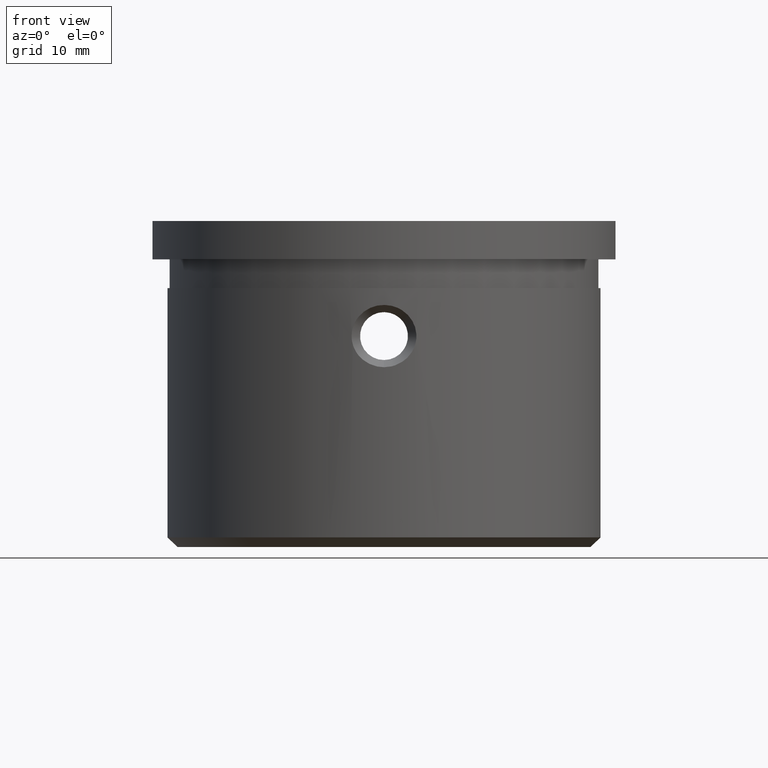
[diagram: clean part render]
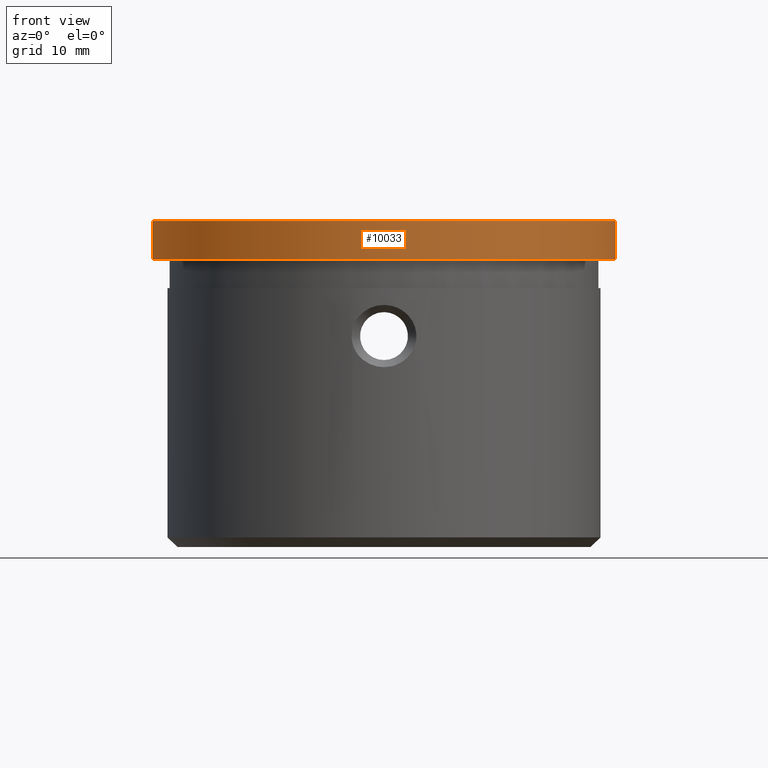
[diagram: same view with one face highlighted and labeled with its STEP entity id]
A machine part, front view. The second image highlights one B-rep face of the part: STEP entity #10033.
In plain terms, the highlighted cylindrical surface (bore or boss wall) has radius 24.15 mm, axis along (-0, -0, -1).
Its self-contained STEP definition (entity closure, byte-faithful):
#343 = CARTESIAN_POINT ( 'NONE',  ( 0.0000000000000000000, 0.0000000000000000000, 4.000000000000000000 ) ) ;
#741 = AXIS2_PLACEMENT_3D ( 'NONE', #3189, #14341, #12376 ) ;
#3000 = EDGE_LOOP ( 'NONE', ( #14450 ) ) ;
#3189 = CARTESIAN_POINT ( 'NONE',  ( 0.0000000000000000000, 0.0000000000000000000, 4.000000000000000000 ) ) ;
#3266 = EDGE_CURVE ( 'NONE', #9287, #9287, #15838, .T. ) ;
#3357 = CYLINDRICAL_SURFACE ( 'NONE', #741, 24.14999999999999900 ) ;
#3604 = CARTESIAN_POINT ( 'NONE',  ( 24.14999999999999900, 0.0000000000000000000, 4.000000000000000000 ) ) ;
#4162 = AXIS2_PLACEMENT_3D ( 'NONE', #15405, #5888, #7769 ) ;
#4877 = EDGE_LOOP ( 'NONE', ( #24155 ) ) ;
#5661 = AXIS2_PLACEMENT_3D ( 'NONE', #343, #9670, #13337 ) ;
#5888 = DIRECTION ( 'NONE',  ( 0.0000000000000000000, 0.0000000000000000000, 1.000000000000000000 ) ) ;
#5965 = CIRCLE ( 'NONE', #5661, 24.14999999999999900 ) ;
#7769 = DIRECTION ( 'NONE',  ( 1.000000000000000000, 0.0000000000000000000, 0.0000000000000000000 ) ) ;
#9287 = VERTEX_POINT ( 'NONE', #21574 ) ;
#9670 = DIRECTION ( 'NONE',  ( 0.0000000000000000000, 0.0000000000000000000, 1.000000000000000000 ) ) ;
#10033 = ADVANCED_FACE ( 'NONE', ( #18948, #23388 ), #3357, .T. ) ;
#11906 = EDGE_CURVE ( 'NONE', #23383, #23383, #5965, .T. ) ;
#12376 = DIRECTION ( 'NONE',  ( -1.000000000000000000, 0.0000000000000000000, 0.0000000000000000000 ) ) ;
#13337 = DIRECTION ( 'NONE',  ( 1.000000000000000000, 0.0000000000000000000, 0.0000000000000000000 ) ) ;
#14341 = DIRECTION ( 'NONE',  ( -0.0000000000000000000, -0.0000000000000000000, -1.000000000000000000 ) ) ;
#14450 = ORIENTED_EDGE ( 'NONE', *, *, #3266, .T. ) ;
#15405 = CARTESIAN_POINT ( 'NONE',  ( 0.0000000000000000000, 0.0000000000000000000, 0.0000000000000000000 ) ) ;
#15838 = CIRCLE ( 'NONE', #4162, 24.14999999999999900 ) ;
#18948 = FACE_OUTER_BOUND ( 'NONE', #4877, .T. ) ;
#21574 = CARTESIAN_POINT ( 'NONE',  ( 24.14999999999999900, 0.0000000000000000000, 0.0000000000000000000 ) ) ;
#23383 = VERTEX_POINT ( 'NONE', #3604 ) ;
#23388 = FACE_OUTER_BOUND ( 'NONE', #3000, .T. ) ;
#24155 = ORIENTED_EDGE ( 'NONE', *, *, #11906, .F. ) ;